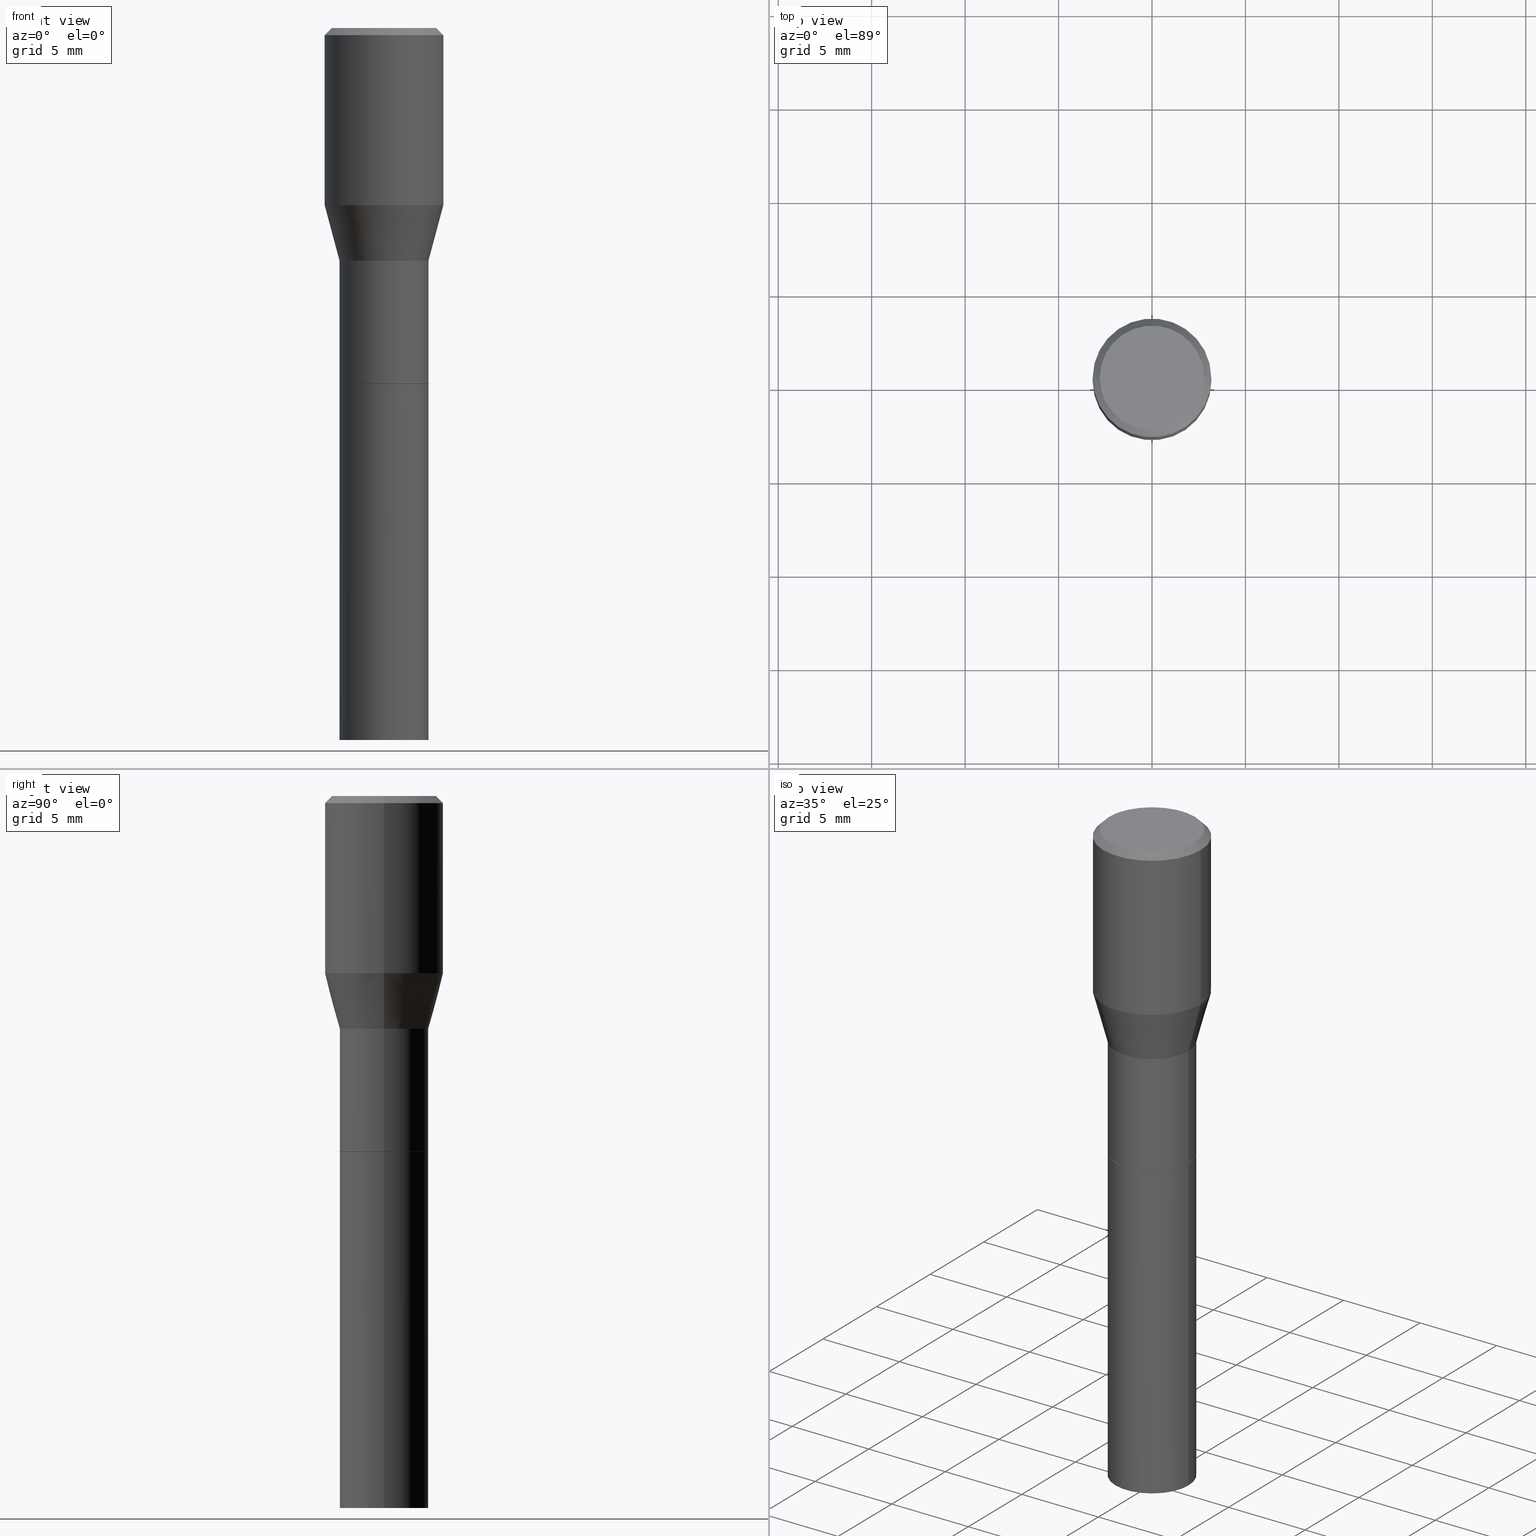
[diagram: canonical four-view strip — front | top / right | iso, engineering-drawing reading convention]
A machine part, canonical four-view strip (front | top / right | iso — engineering-drawing reading convention). The complete STEP part file that produces these views, byte-faithful:
ISO-10303-21;
HEADER;
FILE_DESCRIPTION (( 'STEP AP203' ),
    '1' );
FILE_NAME ('91009.STEP',
    '2024-03-12T20:21:16',
    ( '' ),
    ( '' ),
    'SwSTEP 2.0',
    'SolidWorks 2023',
    '' );
FILE_SCHEMA (( 'CONFIG_CONTROL_DESIGN' ));
ENDSEC;

DATA;
#1 = DIRECTION ( 'NONE',  ( -2.445468806185136597E-29, 3.491481338843145583E-15, 1.000000000000000000 ) ) ;
#2 = CIRCLE ( 'NONE', #302, 0.1250000000000000000 ) ;
#3 = ORIENTED_EDGE ( 'NONE', *, *, #110, .T. ) ;
#4 = APPROVAL ( #236, 'UNSPECIFIED' ) ;
#5 = CARTESIAN_POINT ( 'NONE',  ( 0.000000000000000000, 0.000000000000000000, 0.000000000000000000 ) ) ;
#6 = EDGE_CURVE ( 'NONE', #287, #294, #292, .T. ) ;
#7 = DIRECTION ( 'NONE',  ( 0.2588190451025213501, 1.565188264969621968E-15, 0.9659258262890682012 ) ) ;
#8 = FACE_OUTER_BOUND ( 'NONE', #249, .T. ) ;
#9 = VECTOR ( 'NONE', #384, 39.37007874015748143 ) ;
#10 = APPROVAL_PERSON_ORGANIZATION ( #204, #222, #267 ) ;
#11 = EDGE_LOOP ( 'NONE', ( #98, #28, #192, #108 ) ) ;
#12 = DIRECTION ( 'NONE',  ( -2.445468806185136597E-29, 3.491481338843145583E-15, 1.000000000000000000 ) ) ;
#13 = VERTEX_POINT ( 'NONE', #154 ) ;
#14 = DIMENSIONAL_EXPONENTS ( 1.000000000000000000, 0.000000000000000000, 0.000000000000000000, 0.000000000000000000, 0.000000000000000000, 0.000000000000000000, 0.000000000000000000 ) ;
#15 = DIRECTION ( 'NONE',  ( -2.445468806185136877E-29, 3.491481338843145188E-15, 1.000000000000000000 ) ) ;
#16 = CARTESIAN_POINT ( 'NONE',  ( 9.130730327492267337E-30, -1.303626301338105429E-15, -0.3733734122634732588 ) ) ;
#17 = ORIENTED_EDGE ( 'NONE', *, *, #380, .T. ) ;
#18 = CARTESIAN_POINT ( 'NONE',  ( -0.09324999999999999956, -1.956029903036066063E-15, -0.7500000000000002220 ) ) ;
#19 = VERTEX_POINT ( 'NONE', #126 ) ;
#20 = LOCAL_TIME ( 16, 21, 16.00000000000000000, #159 ) ;
#21 = CALENDAR_DATE ( 2024, 12, 3 ) ;
#22 = CALENDAR_DATE ( 2024, 12, 3 ) ;
#23 = AXIS2_PLACEMENT_3D ( 'NONE', #49, #432, #220 ) ;
#24 = AXIS2_PLACEMENT_3D ( 'NONE', #121, #87, #430 ) ;
#25 = MANIFOLD_SOLID_BREP ( 'Body-Move/Copy2[2]', #168 ) ;
#26 = DIRECTION ( 'NONE',  ( 1.000000000000000000, -6.982962677686266711E-15, 4.873416144172425341E-29 ) ) ;
#27 = DIRECTION ( 'NONE',  ( 1.000000000000000000, -6.982962677686266711E-15, 0.000000000000000000 ) ) ;
#28 = ORIENTED_EDGE ( 'NONE', *, *, #381, .T. ) ;
#29 = CARTESIAN_POINT ( 'NONE',  ( -0.09375000000000005551, -1.044692041258047415E-15, -0.4900000000000001577 ) ) ;
#30 = AXIS2_PLACEMENT_3D ( 'NONE', #191, #206, #459 ) ;
#31 = FACE_OUTER_BOUND ( 'NONE', #131, .T. ) ;
#32 = CARTESIAN_POINT ( 'NONE',  ( -0.1250000000000000000, 8.204981146281362596E-16, -0.01499999999999999944 ) ) ;
#33 = ORIENTED_EDGE ( 'NONE', *, *, #146, .T. ) ;
#34 = DIRECTION ( 'NONE',  ( -1.000000000000000000, 6.982962677686265922E-15, -4.876176775795935793E-29 ) ) ;
#35 = ORIENTED_EDGE ( 'NONE', *, *, #444, .F. ) ;
#36 = CARTESIAN_POINT ( 'NONE',  ( -0.1100000000000000006, 7.943120045868128186E-16, 5.464378949326430820E-17 ) ) ;
#37 = ADVANCED_FACE ( 'NONE', ( #368 ), #96, .T. ) ;
#38 = DIRECTION ( 'NONE',  ( -2.445468806185136597E-29, 3.491481338843145583E-15, 1.000000000000000000 ) ) ;
#39 = ORIENTED_EDGE ( 'NONE', *, *, #279, .F. ) ;
#40 = DIRECTION ( 'NONE',  ( 1.000000000000000000, -6.982962677686266711E-15, 0.000000000000000000 ) ) ;
#41 = ORIENTED_EDGE ( 'NONE', *, *, #436, .T. ) ;
#42 = DIRECTION ( 'NONE',  ( 1.000000000000000000, -6.982962677686269077E-15, 0.000000000000000000 ) ) ;
#43 = AXIS2_PLACEMENT_3D ( 'NONE', #358, #243, #71 ) ;
#44 = ORGANIZATION ( 'UNSPECIFIED', 'UNSPECIFIED', '' ) ;
#45 = ORIENTED_EDGE ( 'NONE', *, *, #145, .T. ) ;
#46 = DIRECTION ( 'NONE',  ( -2.445468806185136597E-29, 3.491481338843145583E-15, 1.000000000000000000 ) ) ;
#47 = DIRECTION ( 'NONE',  ( -2.445468806185136597E-29, 3.491481338843145583E-15, 1.000000000000000000 ) ) ;
#48 = ORIENTED_EDGE ( 'NONE', *, *, #362, .F. ) ;
#49 = CARTESIAN_POINT ( 'NONE',  ( 1.198279715030717314E-29, -1.710825856033141931E-15, -0.4900000000000001577 ) ) ;
#50 = CARTESIAN_POINT ( 'NONE',  ( -0.1250000000000000000, 2.101791589897489784E-16, -0.01499999999999999944 ) ) ;
#51 =( NAMED_UNIT ( * ) SI_UNIT ( $, .STERADIAN. ) SOLID_ANGLE_UNIT ( ) );
#52 = ADVANCED_FACE ( 'NONE', ( #202 ), #276, .F. ) ;
#53 = AXIS2_PLACEMENT_3D ( 'NONE', #229, #38, #370 ) ;
#54 = APPROVAL_PERSON_ORGANIZATION ( #275, #237, #166 ) ;
#55 = COORDINATED_UNIVERSAL_TIME_OFFSET ( 5, 0, .BEHIND. ) ;
#56 = DATE_AND_TIME ( #199, #286 ) ;
#57 = CC_DESIGN_PERSON_AND_ORGANIZATION_ASSIGNMENT ( #450, #232, ( #246 ) ) ;
#58 = DIRECTION ( 'NONE',  ( -2.445468806185136597E-29, 3.491481338843145583E-15, 1.000000000000000000 ) ) ;
#59 = AXIS2_PLACEMENT_3D ( 'NONE', #265, #12, #327 ) ;
#60 = APPROVAL_PERSON_ORGANIZATION ( #270, #4, #375 ) ;
#61 = EDGE_LOOP ( 'NONE', ( #435, #429, #93, #321 ) ) ;
#62 = CARTESIAN_POINT ( 'NONE',  ( 3.668203209277705088E-31, -5.237222008264718399E-17, -0.01499999999999999944 ) ) ;
#63 = LINE ( 'NONE', #29, #366 ) ;
#64 = DIRECTION ( 'NONE',  ( -2.438088387897960049E-29, 3.491481338843145188E-15, 1.000000000000000000 ) ) ;
#65 = ORIENTED_EDGE ( 'NONE', *, *, #423, .F. ) ;
#66 = ADVANCED_BREP_SHAPE_REPRESENTATION ( '91009', ( #181, #25, #81 ), #441 ) ;
#67 = DIRECTION ( 'NONE',  ( -0.7071067811865461294, 2.468850131082242072E-15, -0.7071067811865489050 ) ) ;
#68 = ORIENTED_EDGE ( 'NONE', *, *, #170, .T. ) ;
#69 = FACE_OUTER_BOUND ( 'NONE', #100, .T. ) ;
#70 = EDGE_LOOP ( 'NONE', ( #41, #180, #177, #65 ) ) ;
#71 = DIRECTION ( 'NONE',  ( -1.000000000000000000, 6.982962677686266711E-15, 0.000000000000000000 ) ) ;
#72 = AXIS2_PLACEMENT_3D ( 'NONE', #418, #463, #356 ) ;
#73 = VERTEX_POINT ( 'NONE', #434 ) ;
#74 = CC_DESIGN_PERSON_AND_ORGANIZATION_ASSIGNMENT ( #407, #201, ( #235 ) ) ;
#75 = CARTESIAN_POINT ( 'NONE',  ( 0.09375000000000001388, -5.891874759297805681E-15, -1.500000000000000222 ) ) ;
#76 = EDGE_LOOP ( 'NONE', ( #422, #240, #117, #105 ) ) ;
#77 = DIRECTION ( 'NONE',  ( -2.445468806185136597E-29, 3.491481338843145583E-15, 1.000000000000000000 ) ) ;
#78 = ORIENTED_EDGE ( 'NONE', *, *, #410, .T. ) ;
#79 = CARTESIAN_POINT ( 'NONE',  ( 0.09375000000000001388, -6.546527510330875041E-16, 4.571415727308690506E-30 ) ) ;
#80 = AXIS2_PLACEMENT_3D ( 'NONE', #238, #258, #129 ) ;
#81 = AXIS2_PLACEMENT_3D ( 'NONE', #340, #273, #200 ) ;
#82 = CARTESIAN_POINT ( 'NONE',  ( 0.1250000000000000000, -8.728703347107833388E-16, 6.095220969744919741E-30 ) ) ;
#83 = ORIENTED_EDGE ( 'NONE', *, *, #338, .T. ) ;
#84 = DIRECTION ( 'NONE',  ( -2.445468806185136597E-29, 3.491481338843145583E-15, 1.000000000000000000 ) ) ;
#85 = CC_DESIGN_DATE_AND_TIME_ASSIGNMENT ( #458, #454, ( #235 ) ) ;
#86 = CARTESIAN_POINT ( 'NONE',  ( 0.000000000000000000, 0.000000000000000000, 0.000000000000000000 ) ) ;
#87 = DIRECTION ( 'NONE',  ( -2.445468806185136597E-29, 3.491481338843145583E-15, 1.000000000000000000 ) ) ;
#88 = ADVANCED_FACE ( 'NONE', ( #271 ), #378, .T. ) ;
#89 = CC_DESIGN_APPROVAL ( #237, ( #246 ) ) ;
#90 = COORDINATED_UNIVERSAL_TIME_OFFSET ( 5, 0, .BEHIND. ) ;
#91 = PERSON_AND_ORGANIZATION_ROLE ( 'classification_officer' ) ;
#92 = EDGE_LOOP ( 'NONE', ( #135, #291 ) ) ;
#93 = ORIENTED_EDGE ( 'NONE', *, *, #97, .T. ) ;
#94 = DIRECTION ( 'NONE',  ( -2.445468806185136597E-29, 3.491481338843145583E-15, 1.000000000000000000 ) ) ;
#95 = AXIS2_PLACEMENT_3D ( 'NONE', #336, #58, #26 ) ;
#96 = CYLINDRICAL_SURFACE ( 'NONE', #216, 0.1250000000000000000 ) ;
#97 = EDGE_CURVE ( 'NONE', #294, #13, #158, .T. ) ;
#98 = ORIENTED_EDGE ( 'NONE', *, *, #457, .T. ) ;
#99 = DIRECTION ( 'NONE',  ( 1.000000000000000000, -6.982962677686266711E-15, 4.876176775795935793E-29 ) ) ;
#100 = EDGE_LOOP ( 'NONE', ( #39, #420 ) ) ;
#101 = PLANE ( 'NONE',  #112 ) ;
#102 = EDGE_CURVE ( 'NONE', #364, #73, #448, .T. ) ;
#103 = CIRCLE ( 'NONE', #53, 0.1250000000000000000 ) ;
#104 = FACE_OUTER_BOUND ( 'NONE', #439, .T. ) ;
#105 = ORIENTED_EDGE ( 'NONE', *, *, #102, .F. ) ;
#106 = CALENDAR_DATE ( 2024, 12, 3 ) ;
#107 = FACE_OUTER_BOUND ( 'NONE', #92, .T. ) ;
#108 = ORIENTED_EDGE ( 'NONE', *, *, #182, .F. ) ;
#109 = PLANE ( 'NONE',  #245 ) ;
#110 = EDGE_CURVE ( 'NONE', #143, #13, #371, .T. ) ;
#111 = LINE ( 'NONE', #79, #247 ) ;
#112 = AXIS2_PLACEMENT_3D ( 'NONE', #244, #64, #211 ) ;
#113 = CARTESIAN_POINT ( 'NONE',  ( -0.09375000000000005551, -7.300699614480138057E-16, -0.4900000000000001577 ) ) ;
#114 = ORIENTED_EDGE ( 'NONE', *, *, #224, .T. ) ;
#115 = CARTESIAN_POINT ( 'NONE',  ( 0.09375000000000012490, -6.546527510330883916E-16, 4.571415727308696112E-30 ) ) ;
#116 = DIRECTION ( 'NONE',  ( -2.445468806185136597E-29, 3.491481338843145583E-15, 1.000000000000000000 ) ) ;
#117 = ORIENTED_EDGE ( 'NONE', *, *, #444, .T. ) ;
#118 = DIRECTION ( 'NONE',  ( 1.000000000000000000, -6.982962677686269077E-15, 0.000000000000000000 ) ) ;
#119 = CIRCLE ( 'NONE', #440, 0.1250000000000000000 ) ;
#120 = VERTEX_POINT ( 'NONE', #443 ) ;
#121 = CARTESIAN_POINT ( 'NONE',  ( 1.834101604638853008E-29, -2.618611004132359877E-15, -0.7500000000000002220 ) ) ;
#122 = APPLICATION_PROTOCOL_DEFINITION ( 'international standard', 'config_control_design', 1994, #342 ) ;
#123 = MECHANICAL_CONTEXT ( 'NONE', #308, 'mechanical' ) ;
#124 = SECURITY_CLASSIFICATION ( '', '', #234 ) ;
#125 = DATE_TIME_ROLE ( 'classification_date' ) ;
#126 = CARTESIAN_POINT ( 'NONE',  ( -0.09375000000000001388, -3.261782691423444906E-15, -1.500000000000000222 ) ) ;
#127 = CARTESIAN_POINT ( 'NONE',  ( 0.000000000000000000, 0.000000000000000000, 0.000000000000000000 ) ) ;
#128 = DATE_AND_TIME ( #373, #20 ) ;
#129 = DIRECTION ( 'NONE',  ( 1.000000000000000000, -6.982962677686266711E-15, 0.000000000000000000 ) ) ;
#130 = AXIS2_PLACEMENT_3D ( 'NONE', #316, #175, #464 ) ;
#131 = EDGE_LOOP ( 'NONE', ( #264, #403, #17, #315 ) ) ;
#132 = VECTOR ( 'NONE', #7, 39.37007874015747433 ) ;
#133 = EDGE_CURVE ( 'NONE', #287, #137, #379, .T. ) ;
#134 = DIRECTION ( 'NONE',  ( -2.445468806185136597E-29, 3.491481338843145583E-15, 1.000000000000000000 ) ) ;
#135 = ORIENTED_EDGE ( 'NONE', *, *, #313, .T. ) ;
#136 = DIRECTION ( 'NONE',  ( -2.445468806185136597E-29, 3.491481338843145583E-15, 1.000000000000000000 ) ) ;
#137 = VERTEX_POINT ( 'NONE', #50 ) ;
#138 = CARTESIAN_POINT ( 'NONE',  ( 0.000000000000000000, 0.000000000000000000, 0.000000000000000000 ) ) ;
#139 = EDGE_LOOP ( 'NONE', ( #417, #419, #299, #35 ) ) ;
#140 = VECTOR ( 'NONE', #376, 39.37007874015748143 ) ;
#141 = LOCAL_TIME ( 16, 21, 16.00000000000000000, #161 ) ;
#142 = DIRECTION ( 'NONE',  ( -2.438088387897960049E-29, 3.491481338843145188E-15, 1.000000000000000000 ) ) ;
#143 = VERTEX_POINT ( 'NONE', #438 ) ;
#144 = DIRECTION ( 'NONE',  ( 1.000000000000000000, -6.982962677686266711E-15, 4.876176775795935793E-29 ) ) ;
#145 = EDGE_CURVE ( 'NONE', #137, #13, #2, .T. ) ;
#146 = EDGE_CURVE ( 'NONE', #205, #143, #352, .T. ) ;
#147 = CARTESIAN_POINT ( 'NONE',  ( 0.09375000000000005551, -2.365478607066230027E-15, -0.4900000000000001577 ) ) ;
#148 = DIRECTION ( 'NONE',  ( -2.445468806185136597E-29, 3.491481338843145583E-15, 1.000000000000000000 ) ) ;
#149 = AXIS2_PLACEMENT_3D ( 'NONE', #138, #382, #218 ) ;
#150 = CARTESIAN_POINT ( 'NONE',  ( 9.130730327492267337E-30, -1.303626301338105429E-15, -0.3733734122634732588 ) ) ;
#151 = ORIENTED_EDGE ( 'NONE', *, *, #436, .F. ) ;
#152 = PERSON ( 'UNSPECIFIED', 'UNSPECIFIED', 'UNSPECIFIED', ('UNSPECIFIED'), ('UNSPECIFIED'), ('UNSPECIFIED') ) ;
#153 = DIRECTION ( 'NONE',  ( -0.7071067811865595631, 7.493145998870398336E-15, 0.7071067811865354713 ) ) ;
#154 = CARTESIAN_POINT ( 'NONE',  ( 0.1250000000000000000, -9.252425547934304180E-16, -0.01499999999999999944 ) ) ;
#155 = ADVANCED_FACE ( 'NONE', ( #165 ), #314, .T. ) ;
#156 = FACE_OUTER_BOUND ( 'NONE', #70, .T. ) ;
#157 = VECTOR ( 'NONE', #67, 39.37007874015748143 ) ;
#158 = LINE ( 'NONE', #82, #285 ) ;
#159 = COORDINATED_UNIVERSAL_TIME_OFFSET ( 5, 0, .BEHIND. ) ;
#160 = APPROVAL_DATE_TIME ( #266, #222 ) ;
#161 = COORDINATED_UNIVERSAL_TIME_OFFSET ( 5, 0, .BEHIND. ) ;
#162 = AXIS2_PLACEMENT_3D ( 'NONE', #280, #136, #326 ) ;
#163 = CIRCLE ( 'NONE', #325, 0.09324999999999999956 ) ;
#164 = ADVANCED_FACE ( 'NONE', ( #290 ), #179, .T. ) ;
#165 = FACE_OUTER_BOUND ( 'NONE', #139, .T. ) ;
#166 = APPROVAL_ROLE ( '' ) ;
#167 = DIRECTION ( 'NONE',  ( 1.000000000000000000, -6.982962677686266711E-15, 4.876176775795935793E-29 ) ) ;
#168 = CLOSED_SHELL ( 'NONE', ( #227, #197, #198, #37, #337, #408, #88, #392, #52, #207, #187, #219 ) ) ;
#169 = ORIENTED_EDGE ( 'NONE', *, *, #133, .T. ) ;
#170 = EDGE_CURVE ( 'NONE', #143, #205, #401, .T. ) ;
#171 = FACE_OUTER_BOUND ( 'NONE', #400, .T. ) ;
#172 = PRODUCT ( '91009', '91009', '', ( #123 ) ) ;
#173 = CONICAL_SURFACE ( 'NONE', #23, 0.09375000000000005551, 0.2617993877991500740 ) ;
#174 = LOCAL_TIME ( 16, 21, 16.00000000000000000, #322 ) ;
#175 = DIRECTION ( 'NONE',  ( -2.445468806185136597E-29, 3.491481338843145583E-15, 1.000000000000000000 ) ) ;
#176 = CARTESIAN_POINT ( 'NONE',  ( 0.09324999999999999956, -3.269772273826604374E-15, -0.7500000000000002220 ) ) ;
#177 = ORIENTED_EDGE ( 'NONE', *, *, #361, .F. ) ;
#178 = APPROVAL_DATE_TIME ( #355, #4 ) ;
#179 = CYLINDRICAL_SURFACE ( 'NONE', #149, 0.09375000000000001388 ) ;
#180 = ORIENTED_EDGE ( 'NONE', *, *, #195, .T. ) ;
#181 = MANIFOLD_SOLID_BREP ( 'Body-Move/Copy2[1]', #389 ) ;
#182 = EDGE_CURVE ( 'NONE', #262, #120, #208, .T. ) ;
#183 = CARTESIAN_POINT ( 'NONE',  ( 0.09324999999999999956, -3.269772273826604374E-15, -0.7500000000000002220 ) ) ;
#184 = CARTESIAN_POINT ( 'NONE',  ( -0.09375000000000001388, -3.261782691423444906E-15, -0.7500000000000001110 ) ) ;
#185 = LINE ( 'NONE', #18, #210 ) ;
#186 = CC_DESIGN_PERSON_AND_ORGANIZATION_ASSIGNMENT ( #412, #409, ( #172 ) ) ;
#187 = ADVANCED_FACE ( 'NONE', ( #171 ), #233, .T. ) ;
#188 = CIRCLE ( 'NONE', #59, 0.09375000000000019429 ) ;
#189 = CARTESIAN_POINT ( 'NONE',  ( 0.09375000000000005551, -2.365478607066230027E-15, -0.4900000000000001577 ) ) ;
#190 = DIRECTION ( 'NONE',  ( 1.000000000000000000, -6.982962677686268288E-15, 0.000000000000000000 ) ) ;
#191 = CARTESIAN_POINT ( 'NONE',  ( 7.681258945454893776E-16, 0.1100000000000000006, -3.567410525261111604E-16 ) ) ;
#192 = ORIENTED_EDGE ( 'NONE', *, *, #410, .F. ) ;
#193 = LINE ( 'NONE', #254, #317 ) ;
#194 = DIRECTION ( 'NONE',  ( 1.000000000000000000, -6.982962677686266711E-15, 0.000000000000000000 ) ) ;
#195 = EDGE_CURVE ( 'NONE', #357, #287, #63, .T. ) ;
#196 = CIRCLE ( 'NONE', #341, 0.09375000000000019429 ) ;
#197 = ADVANCED_FACE ( 'NONE', ( #319 ), #415, .T. ) ;
#198 = ADVANCED_FACE ( 'NONE', ( #213 ), #324, .T. ) ;
#199 = CALENDAR_DATE ( 2024, 12, 3 ) ;
#200 = DIRECTION ( 'NONE',  ( 1.000000000000000000, 0.000000000000000000, 0.000000000000000000 ) ) ;
#201 = PERSON_AND_ORGANIZATION_ROLE ( 'creator' ) ;
#202 = FACE_OUTER_BOUND ( 'NONE', #385, .T. ) ;
#203 = AXIS2_PLACEMENT_3D ( 'NONE', #261, #360, #40 ) ;
#204 = PERSON_AND_ORGANIZATION ( #152, #44 ) ;
#205 = VERTEX_POINT ( 'NONE', #36 ) ;
#206 = DIRECTION ( 'NONE',  ( 2.438088387897960049E-29, -3.491481338843145188E-15, -1.000000000000000000 ) ) ;
#207 = ADVANCED_FACE ( 'NONE', ( #461 ), #351, .F. ) ;
#208 = LINE ( 'NONE', #176, #9 ) ;
#209 = PRODUCT_DEFINITION_SHAPE ( 'NONE', 'NONE',  #235 ) ;
#210 = VECTOR ( 'NONE', #153, 39.37007874015748143 ) ;
#211 = DIRECTION ( 'NONE',  ( 1.000000000000000000, -6.982962677686265922E-15, 4.876176775795935793E-29 ) ) ;
#212 = EDGE_LOOP ( 'NONE', ( #354, #305, #214, #45 ) ) ;
#213 = FACE_OUTER_BOUND ( 'NONE', #298, .T. ) ;
#214 = ORIENTED_EDGE ( 'NONE', *, *, #272, .T. ) ;
#215 = DIRECTION ( 'NONE',  ( 1.000000000000000000, -6.982962677686265922E-15, 4.876176775795935793E-29 ) ) ;
#216 = AXIS2_PLACEMENT_3D ( 'NONE', #411, #47, #167 ) ;
#217 = AXIS2_PLACEMENT_3D ( 'NONE', #257, #399, #293 ) ;
#218 = DIRECTION ( 'NONE',  ( 1.000000000000000000, -6.982962677686265922E-15, 4.876176775795935793E-29 ) ) ;
#219 = ADVANCED_FACE ( 'NONE', ( #31 ), #424, .T. ) ;
#220 = DIRECTION ( 'NONE',  ( 1.000000000000000000, -6.982962677686269077E-15, 0.000000000000000000 ) ) ;
#221 = ORIENTED_EDGE ( 'NONE', *, *, #423, .T. ) ;
#222 = APPROVAL ( #239, 'UNSPECIFIED' ) ;
#223 = CARTESIAN_POINT ( 'NONE',  ( -0.09375000000000019429, -1.950731448687842083E-15, -0.7495000000000000551 ) ) ;
#224 = EDGE_CURVE ( 'NONE', #357, #426, #268, .T. ) ;
#225 = CARTESIAN_POINT ( 'NONE',  ( 3.668203209277704895E-29, -5.237222008264718177E-15, -1.500000000000000222 ) ) ;
#226 = DIRECTION ( 'NONE',  ( -2.445468806185136597E-29, 3.491481338843145583E-15, 1.000000000000000000 ) ) ;
#227 = ADVANCED_FACE ( 'NONE', ( #104 ), #282, .T. ) ;
#228 = ORIENTED_EDGE ( 'NONE', *, *, #362, .T. ) ;
#229 = CARTESIAN_POINT ( 'NONE',  ( 3.668203209277705088E-31, -5.237222008264718399E-17, -0.01499999999999999944 ) ) ;
#230 = DIRECTION ( 'NONE',  ( 1.000000000000000000, -6.982962677686266711E-15, 4.876176775795935793E-29 ) ) ;
#231 =( CONVERSION_BASED_UNIT ( 'INCH', #309 ) LENGTH_UNIT ( ) NAMED_UNIT ( #14 ) );
#232 = PERSON_AND_ORGANIZATION_ROLE ( 'creator' ) ;
#233 = CONICAL_SURFACE ( 'NONE', #130, 0.09324999999999999956, 0.7853981633974653764 ) ;
#234 = SECURITY_CLASSIFICATION_LEVEL ( 'unclassified' ) ;
#235 = PRODUCT_DEFINITION ( 'UNKNOWN', '', #246, #447 ) ;
#236 = APPROVAL_STATUS ( 'not_yet_approved' ) ;
#237 = APPROVAL ( #348, 'UNSPECIFIED' ) ;
#238 = CARTESIAN_POINT ( 'NONE',  ( 1.834101604638852448E-29, -2.618611004132359088E-15, -0.7500000000000001110 ) ) ;
#239 = APPROVAL_STATUS ( 'not_yet_approved' ) ;
#240 = ORIENTED_EDGE ( 'NONE', *, *, #414, .T. ) ;
#241 = VECTOR ( 'NONE', #333, 39.37007874015748143 ) ;
#242 = CARTESIAN_POINT ( 'NONE',  ( 0.1250000000000000000, -9.099344698040885245E-16, -0.01499999999999999944 ) ) ;
#243 = DIRECTION ( 'NONE',  ( 2.445468806185136597E-29, -3.491481338843145583E-15, -1.000000000000000000 ) ) ;
#244 = CARTESIAN_POINT ( 'NONE',  ( 3.576687321579069994E-29, -5.368277968210015545E-15, -1.500000000000000222 ) ) ;
#245 = AXIS2_PLACEMENT_3D ( 'NONE', #421, #386, #34 ) ;
#246 = PRODUCT_DEFINITION_FORMATION_WITH_SPECIFIED_SOURCE ( 'ANY', '', #172, .NOT_KNOWN. ) ;
#247 = VECTOR ( 'NONE', #367, 39.37007874015748143 ) ;
#248 = CARTESIAN_POINT ( 'NONE',  ( 1.834101604638853008E-29, -2.618611004132359877E-15, -0.7500000000000002220 ) ) ;
#249 = EDGE_LOOP ( 'NONE', ( #256, #114, #221, #345 ) ) ;
#250 = CARTESIAN_POINT ( 'NONE',  ( 3.668203209277704895E-29, -5.237222008264718177E-15, -1.500000000000000222 ) ) ;
#251 = CARTESIAN_POINT ( 'NONE',  ( -0.09324999999999999956, -1.953380675861954073E-15, -0.7500000000000002220 ) ) ;
#252 = ADVANCED_FACE ( 'NONE', ( #107 ), #109, .F. ) ;
#253 = LOCAL_TIME ( 16, 21, 16.00000000000000000, #90 ) ;
#254 = CARTESIAN_POINT ( 'NONE',  ( -0.09375000000000012490, 6.661338147750948117E-16, -4.611501647113980301E-30 ) ) ;
#255 = CARTESIAN_POINT ( 'NONE',  ( 3.668203209277705088E-31, -5.237222008264718399E-17, -0.01499999999999999944 ) ) ;
#256 = ORIENTED_EDGE ( 'NONE', *, *, #195, .F. ) ;
#257 = CARTESIAN_POINT ( 'NONE',  ( 1.198279715030717314E-29, -1.710825856033141931E-15, -0.4900000000000001577 ) ) ;
#258 = DIRECTION ( 'NONE',  ( -2.445468806185136597E-29, 3.491481338843145583E-15, 1.000000000000000000 ) ) ;
#259 = ORIENTED_EDGE ( 'NONE', *, *, #466, .T. ) ;
#260 = CIRCLE ( 'NONE', #203, 0.09375000000000001388 ) ;
#261 = CARTESIAN_POINT ( 'NONE',  ( 1.834101604638852448E-29, -2.618611004132359088E-15, -0.7500000000000001110 ) ) ;
#262 = VERTEX_POINT ( 'NONE', #183 ) ;
#263 = ADVANCED_FACE ( 'NONE', ( #69 ), #101, .F. ) ;
#264 = ORIENTED_EDGE ( 'NONE', *, *, #338, .F. ) ;
#265 = CARTESIAN_POINT ( 'NONE',  ( 1.832878870235759926E-29, -2.616865263462937979E-15, -0.7495000000000000551 ) ) ;
#266 = DATE_AND_TIME ( #21, #141 ) ;
#267 = APPROVAL_ROLE ( '' ) ;
#268 = CIRCLE ( 'NONE', #72, 0.09375000000000005551 ) ;
#269 = CC_DESIGN_PERSON_AND_ORGANIZATION_ASSIGNMENT ( #374, #91, ( #124 ) ) ;
#270 = PERSON_AND_ORGANIZATION ( #152, #44 ) ;
#271 = FACE_OUTER_BOUND ( 'NONE', #61, .T. ) ;
#272 = EDGE_CURVE ( 'NONE', #205, #137, #353, .T. ) ;
#273 = DIRECTION ( 'NONE',  ( 0.000000000000000000, 0.000000000000000000, 1.000000000000000000 ) ) ;
#274 = ORIENTED_EDGE ( 'NONE', *, *, #182, .T. ) ;
#275 = PERSON_AND_ORGANIZATION ( #152, #44 ) ;
#276 = PLANE ( 'NONE',  #30 ) ;
#277 = CONICAL_SURFACE ( 'NONE', #339, 0.1250000000000000000, 0.7853981633974463916 ) ;
#278 = ORIENTED_EDGE ( 'NONE', *, *, #97, .F. ) ;
#279 = EDGE_CURVE ( 'NONE', #383, #19, #425, .T. ) ;
#280 = CARTESIAN_POINT ( 'NONE',  ( -1.336296826575383585E-45, 1.907877712994245642E-31, 5.464378949326977476E-17 ) ) ;
#281 = VERTEX_POINT ( 'NONE', #251 ) ;
#282 = CYLINDRICAL_SURFACE ( 'NONE', #330, 0.09375000000000012490 ) ;
#283 = ORIENTED_EDGE ( 'NONE', *, *, #272, .F. ) ;
#284 = CARTESIAN_POINT ( 'NONE',  ( 1.834101604638853008E-29, -2.618611004132359877E-15, -0.7500000000000002220 ) ) ;
#285 = VECTOR ( 'NONE', #349, 39.37007874015748143 ) ;
#286 = LOCAL_TIME ( 16, 21, 16.00000000000000000, #55 ) ;
#287 = VERTEX_POINT ( 'NONE', #433 ) ;
#288 = SHAPE_DEFINITION_REPRESENTATION ( #209, #66 ) ;
#289 = DIRECTION ( 'NONE',  ( -2.445468806185136597E-29, 3.491481338843145583E-15, 1.000000000000000000 ) ) ;
#290 = FACE_OUTER_BOUND ( 'NONE', #76, .T. ) ;
#291 = ORIENTED_EDGE ( 'NONE', *, *, #102, .T. ) ;
#292 = CIRCLE ( 'NONE', #465, 0.1250000000000000000 ) ;
#293 = DIRECTION ( 'NONE',  ( 1.000000000000000000, -6.982962677686269077E-15, 0.000000000000000000 ) ) ;
#294 = VERTEX_POINT ( 'NONE', #331 ) ;
#295 = AXIS2_PLACEMENT_3D ( 'NONE', #86, #116, #230 ) ;
#296 = CARTESIAN_POINT ( 'NONE',  ( -0.09375000000000001388, 6.661338147750940229E-16, -4.611501647113973995E-30 ) ) ;
#297 = DIRECTION ( 'NONE',  ( 1.000000000000000000, -6.982962677686266711E-15, 0.000000000000000000 ) ) ;
#298 = EDGE_LOOP ( 'NONE', ( #332, #3, #228, #283 ) ) ;
#299 = ORIENTED_EDGE ( 'NONE', *, *, #313, .F. ) ;
#300 = DIRECTION ( 'NONE',  ( -1.000000000000000000, 6.982962677686266711E-15, 0.000000000000000000 ) ) ;
#301 = ORIENTED_EDGE ( 'NONE', *, *, #380, .F. ) ;
#302 = AXIS2_PLACEMENT_3D ( 'NONE', #62, #226, #194 ) ;
#303 = DIRECTION ( 'NONE',  ( -2.445468806185136877E-29, 3.491481338843145188E-15, 1.000000000000000000 ) ) ;
#304 = CC_DESIGN_APPROVAL ( #222, ( #235 ) ) ;
#305 = ORIENTED_EDGE ( 'NONE', *, *, #146, .F. ) ;
#306 = PERSON_AND_ORGANIZATION ( #152, #44 ) ;
#307 = EDGE_CURVE ( 'NONE', #19, #364, #402, .T. ) ;
#308 = APPLICATION_CONTEXT ( 'configuration controlled 3d designs of mechanical parts and assemblies' ) ;
#309 = LENGTH_MEASURE_WITH_UNIT ( LENGTH_MEASURE( 0.02539999999999999897 ), #372 );
#310 = APPROVAL_DATE_TIME ( #128, #237 ) ;
#311 = VECTOR ( 'NONE', #15, 39.37007874015748143 ) ;
#312 = CIRCLE ( 'NONE', #217, 0.09375000000000005551 ) ;
#313 = EDGE_CURVE ( 'NONE', #73, #364, #260, .T. ) ;
#314 = CYLINDRICAL_SURFACE ( 'NONE', #344, 0.09375000000000001388 ) ;
#315 = ORIENTED_EDGE ( 'NONE', *, *, #224, .F. ) ;
#316 = CARTESIAN_POINT ( 'NONE',  ( 1.834101604638853008E-29, -2.618611004132359877E-15, -0.7500000000000002220 ) ) ;
#317 = VECTOR ( 'NONE', #303, 39.37007874015748143 ) ;
#318 = CIRCLE ( 'NONE', #394, 0.09375000000000001388 ) ;
#319 = FACE_OUTER_BOUND ( 'NONE', #11, .T. ) ;
#320 = DIRECTION ( 'NONE',  ( 1.000000000000000000, -6.982962677686268288E-15, 0.000000000000000000 ) ) ;
#321 = ORIENTED_EDGE ( 'NONE', *, *, #145, .F. ) ;
#322 = COORDINATED_UNIVERSAL_TIME_OFFSET ( 5, 0, .BEHIND. ) ;
#323 = DIRECTION ( 'NONE',  ( 1.000000000000000000, -6.982962677686265922E-15, 4.876176775795935793E-29 ) ) ;
#324 = CONICAL_SURFACE ( 'NONE', #43, 0.1250000000000000000, 0.7853981633974463916 ) ;
#325 = AXIS2_PLACEMENT_3D ( 'NONE', #363, #46, #190 ) ;
#326 = DIRECTION ( 'NONE',  ( 1.000000000000000000, -6.982962677686266711E-15, 4.873416144172425341E-29 ) ) ;
#327 = DIRECTION ( 'NONE',  ( 1.000000000000000000, -6.982962677686269077E-15, 0.000000000000000000 ) ) ;
#328 = DIRECTION ( 'NONE',  ( 2.445468806185136597E-29, -3.491481338843145583E-15, -1.000000000000000000 ) ) ;
#329 = EDGE_LOOP ( 'NONE', ( #398, #416 ) ) ;
#330 = AXIS2_PLACEMENT_3D ( 'NONE', #427, #1, #99 ) ;
#331 = CARTESIAN_POINT ( 'NONE',  ( 0.1250000000000000000, -2.176496636048888767E-15, -0.3733734122634732588 ) ) ;
#332 = ORIENTED_EDGE ( 'NONE', *, *, #170, .F. ) ;
#333 = DIRECTION ( 'NONE',  ( -2.445468806185136877E-29, 3.491481338843145188E-15, 1.000000000000000000 ) ) ;
#334 = DIRECTION ( 'NONE',  ( 0.7071067811865461294, -7.319954787623251312E-15, -0.7071067811865489050 ) ) ;
#335 = LINE ( 'NONE', #115, #241 ) ;
#336 = CARTESIAN_POINT ( 'NONE',  ( -1.336296826575383585E-45, 1.907877712994245642E-31, 5.464378949326977476E-17 ) ) ;
#337 = ADVANCED_FACE ( 'NONE', ( #156 ), #173, .T. ) ;
#338 = EDGE_CURVE ( 'NONE', #413, #357, #193, .T. ) ;
#339 = AXIS2_PLACEMENT_3D ( 'NONE', #255, #328, #300 ) ;
#340 = CARTESIAN_POINT ( 'NONE',  ( 0.000000000000000000, 0.000000000000000000, 0.000000000000000000 ) ) ;
#341 = AXIS2_PLACEMENT_3D ( 'NONE', #397, #77, #118 ) ;
#342 = APPLICATION_CONTEXT ( 'configuration controlled 3d designs of mechanical parts and assemblies' ) ;
#343 =( NAMED_UNIT ( * ) PLANE_ANGLE_UNIT ( ) SI_UNIT ( $, .RADIAN. ) );
#344 = AXIS2_PLACEMENT_3D ( 'NONE', #127, #94, #215 ) ;
#345 = ORIENTED_EDGE ( 'NONE', *, *, #6, .F. ) ;
#346 = CC_DESIGN_APPROVAL ( #4, ( #124 ) ) ;
#347 = EDGE_CURVE ( 'NONE', #413, #120, #188, .T. ) ;
#348 = APPROVAL_STATUS ( 'not_yet_approved' ) ;
#349 = DIRECTION ( 'NONE',  ( -2.445468806185136877E-29, 3.491481338843145188E-15, 1.000000000000000000 ) ) ;
#350 = DIRECTION ( 'NONE',  ( -2.445468806185136597E-29, 3.491481338843145583E-15, 1.000000000000000000 ) ) ;
#351 = PLANE ( 'NONE',  #406 ) ;
#352 = CIRCLE ( 'NONE', #95, 0.1100000000000000006 ) ;
#353 = LINE ( 'NONE', #32, #157 ) ;
#354 = ORIENTED_EDGE ( 'NONE', *, *, #110, .F. ) ;
#355 = DATE_AND_TIME ( #106, #174 ) ;
#356 = DIRECTION ( 'NONE',  ( 1.000000000000000000, -6.982962677686269077E-15, 0.000000000000000000 ) ) ;
#357 = VERTEX_POINT ( 'NONE', #113 ) ;
#358 = CARTESIAN_POINT ( 'NONE',  ( 3.668203209277705088E-31, -5.237222008264718399E-17, -0.01499999999999999944 ) ) ;
#359 = AXIS2_PLACEMENT_3D ( 'NONE', #250, #388, #428 ) ;
#360 = DIRECTION ( 'NONE',  ( -2.445468806185136597E-29, 3.491481338843145583E-15, 1.000000000000000000 ) ) ;
#361 = EDGE_CURVE ( 'NONE', #294, #287, #119, .T. ) ;
#362 = EDGE_CURVE ( 'NONE', #13, #137, #103, .T. ) ;
#363 = CARTESIAN_POINT ( 'NONE',  ( 1.834101604638853008E-29, -2.618611004132359877E-15, -0.7500000000000002220 ) ) ;
#364 = VERTEX_POINT ( 'NONE', #184 ) ;
#365 = DIRECTION ( 'NONE',  ( -2.445468806185136597E-29, 3.491481338843145583E-15, 1.000000000000000000 ) ) ;
#366 = VECTOR ( 'NONE', #390, 39.37007874015747433 ) ;
#367 = DIRECTION ( 'NONE',  ( -2.445468806185136877E-29, 3.491481338843145188E-15, 1.000000000000000000 ) ) ;
#368 = FACE_OUTER_BOUND ( 'NONE', #396, .T. ) ;
#369 = ORIENTED_EDGE ( 'NONE', *, *, #347, .F. ) ;
#370 = DIRECTION ( 'NONE',  ( 1.000000000000000000, -6.982962677686266711E-15, 0.000000000000000000 ) ) ;
#371 = LINE ( 'NONE', #242, #393 ) ;
#372 =( LENGTH_UNIT ( ) NAMED_UNIT ( * ) SI_UNIT ( $, .METRE. ) );
#373 = CALENDAR_DATE ( 2024, 12, 3 ) ;
#374 = PERSON_AND_ORGANIZATION ( #152, #44 ) ;
#375 = APPROVAL_ROLE ( '' ) ;
#376 = DIRECTION ( 'NONE',  ( -2.445468806185136877E-29, 3.491481338843145188E-15, 1.000000000000000000 ) ) ;
#377 = AXIS2_PLACEMENT_3D ( 'NONE', #248, #289, #320 ) ;
#378 = CYLINDRICAL_SURFACE ( 'NONE', #295, 0.1250000000000000000 ) ;
#379 = LINE ( 'NONE', #455, #140 ) ;
#380 = EDGE_CURVE ( 'NONE', #120, #426, #335, .T. ) ;
#381 = EDGE_CURVE ( 'NONE', #281, #413, #185, .T. ) ;
#382 = DIRECTION ( 'NONE',  ( -2.445468806185136597E-29, 3.491481338843145583E-15, 1.000000000000000000 ) ) ;
#383 = VERTEX_POINT ( 'NONE', #75 ) ;
#384 = DIRECTION ( 'NONE',  ( 0.7071067811865595631, -2.468850131082382884E-15, 0.7071067811865354713 ) ) ;
#385 = EDGE_LOOP ( 'NONE', ( #33, #68 ) ) ;
#386 = DIRECTION ( 'NONE',  ( 2.438088387897960049E-29, -3.491481338843145188E-15, -1.000000000000000000 ) ) ;
#387 = ORIENTED_EDGE ( 'NONE', *, *, #361, .T. ) ;
#388 = DIRECTION ( 'NONE',  ( -2.445468806185136597E-29, 3.491481338843145583E-15, 1.000000000000000000 ) ) ;
#389 = CLOSED_SHELL ( 'NONE', ( #155, #263, #164, #252 ) ) ;
#390 = DIRECTION ( 'NONE',  ( -0.2588190451025213501, 5.211531920934551042E-15, 0.9659258262890682012 ) ) ;
#391 = CC_DESIGN_DATE_AND_TIME_ASSIGNMENT ( #56, #125, ( #124 ) ) ;
#392 = ADVANCED_FACE ( 'NONE', ( #442 ), #277, .T. ) ;
#393 = VECTOR ( 'NONE', #334, 39.37007874015748143 ) ;
#394 = AXIS2_PLACEMENT_3D ( 'NONE', #225, #365, #437 ) ;
#395 = LINE ( 'NONE', #189, #132 ) ;
#396 = EDGE_LOOP ( 'NONE', ( #387, #169, #48, #278 ) ) ;
#397 = CARTESIAN_POINT ( 'NONE',  ( 1.832878870235759926E-29, -2.616865263462937979E-15, -0.7495000000000000551 ) ) ;
#398 = ORIENTED_EDGE ( 'NONE', *, *, #457, .F. ) ;
#399 = DIRECTION ( 'NONE',  ( -2.445468806185136597E-29, 3.491481338843145583E-15, 1.000000000000000000 ) ) ;
#400 = EDGE_LOOP ( 'NONE', ( #452, #259, #274, #369 ) ) ;
#401 = CIRCLE ( 'NONE', #162, 0.1100000000000000006 ) ;
#402 = LINE ( 'NONE', #296, #311 ) ;
#403 = ORIENTED_EDGE ( 'NONE', *, *, #347, .T. ) ;
#404 = CARTESIAN_POINT ( 'NONE',  ( 1.198279715030717314E-29, -1.710825856033141931E-15, -0.4900000000000001577 ) ) ;
#405 = PRODUCT_RELATED_PRODUCT_CATEGORY ( 'detail', '', ( #172 ) ) ;
#406 = AXIS2_PLACEMENT_3D ( 'NONE', #284, #142, #323 ) ;
#407 = PERSON_AND_ORGANIZATION ( #152, #44 ) ;
#408 = ADVANCED_FACE ( 'NONE', ( #8 ), #460, .T. ) ;
#409 = PERSON_AND_ORGANIZATION_ROLE ( 'design_owner' ) ;
#410 = EDGE_CURVE ( 'NONE', #120, #413, #196, .T. ) ;
#411 = CARTESIAN_POINT ( 'NONE',  ( 0.000000000000000000, 0.000000000000000000, 0.000000000000000000 ) ) ;
#412 = PERSON_AND_ORGANIZATION ( #152, #44 ) ;
#413 = VERTEX_POINT ( 'NONE', #223 ) ;
#414 = EDGE_CURVE ( 'NONE', #19, #383, #318, .T. ) ;
#415 = CONICAL_SURFACE ( 'NONE', #377, 0.09324999999999999956, 0.7853981633974653764 ) ;
#416 = ORIENTED_EDGE ( 'NONE', *, *, #466, .F. ) ;
#417 = ORIENTED_EDGE ( 'NONE', *, *, #279, .T. ) ;
#418 = CARTESIAN_POINT ( 'NONE',  ( 1.198279715030717314E-29, -1.710825856033141931E-15, -0.4900000000000001577 ) ) ;
#419 = ORIENTED_EDGE ( 'NONE', *, *, #307, .T. ) ;
#420 = ORIENTED_EDGE ( 'NONE', *, *, #414, .F. ) ;
#421 = CARTESIAN_POINT ( 'NONE',  ( 6.546527510331058451E-16, 0.09374999999999739098, -0.7500000000000003331 ) ) ;
#422 = ORIENTED_EDGE ( 'NONE', *, *, #307, .F. ) ;
#423 = EDGE_CURVE ( 'NONE', #426, #294, #395, .T. ) ;
#424 = CYLINDRICAL_SURFACE ( 'NONE', #449, 0.09375000000000012490 ) ;
#425 = CIRCLE ( 'NONE', #359, 0.09375000000000001388 ) ;
#426 = VERTEX_POINT ( 'NONE', #147 ) ;
#427 = CARTESIAN_POINT ( 'NONE',  ( 0.000000000000000000, 0.000000000000000000, 0.000000000000000000 ) ) ;
#428 = DIRECTION ( 'NONE',  ( 1.000000000000000000, -6.982962677686261189E-15, 0.000000000000000000 ) ) ;
#429 = ORIENTED_EDGE ( 'NONE', *, *, #6, .T. ) ;
#430 = DIRECTION ( 'NONE',  ( 1.000000000000000000, -6.982962677686268288E-15, 0.000000000000000000 ) ) ;
#431 = AXIS2_PLACEMENT_3D ( 'NONE', #404, #148, #42 ) ;
#432 = DIRECTION ( 'NONE',  ( -2.445468806185136597E-29, 3.491481338843145583E-15, 1.000000000000000000 ) ) ;
#433 = CARTESIAN_POINT ( 'NONE',  ( -0.1250000000000000000, -4.154478816379799005E-16, -0.3733734122634732588 ) ) ;
#434 = CARTESIAN_POINT ( 'NONE',  ( 0.09375000000000001388, -3.273263755165446987E-15, -0.7500000000000001110 ) ) ;
#435 = ORIENTED_EDGE ( 'NONE', *, *, #133, .F. ) ;
#436 = EDGE_CURVE ( 'NONE', #426, #357, #312, .T. ) ;
#437 = DIRECTION ( 'NONE',  ( 1.000000000000000000, -6.982962677686261189E-15, 0.000000000000000000 ) ) ;
#438 = CARTESIAN_POINT ( 'NONE',  ( 0.1100000000000000006, -8.322946247794783877E-16, 5.464378949327537075E-17 ) ) ;
#439 = EDGE_LOOP ( 'NONE', ( #78, #83, #151, #301 ) ) ;
#440 = AXIS2_PLACEMENT_3D ( 'NONE', #150, #84, #297 ) ;
#441 =( GEOMETRIC_REPRESENTATION_CONTEXT ( 3 ) GLOBAL_UNCERTAINTY_ASSIGNED_CONTEXT ( ( #456 ) ) GLOBAL_UNIT_ASSIGNED_CONTEXT ( ( #231, #343, #51 ) ) REPRESENTATION_CONTEXT ( 'NONE', 'WORKASPACE' ) );
#442 = FACE_OUTER_BOUND ( 'NONE', #212, .T. ) ;
#443 = CARTESIAN_POINT ( 'NONE',  ( 0.09375000000000019429, -3.271518014496026667E-15, -0.7495000000000000551 ) ) ;
#444 = EDGE_CURVE ( 'NONE', #383, #73, #111, .T. ) ;
#445 = PERSON_AND_ORGANIZATION_ROLE ( 'design_supplier' ) ;
#446 = APPLICATION_PROTOCOL_DEFINITION ( 'international standard', 'config_control_design', 1994, #308 ) ;
#447 = DESIGN_CONTEXT ( 'detailed design', #342, 'design' ) ;
#448 = CIRCLE ( 'NONE', #80, 0.09375000000000001388 ) ;
#449 = AXIS2_PLACEMENT_3D ( 'NONE', #5, #134, #144 ) ;
#450 = PERSON_AND_ORGANIZATION ( #152, #44 ) ;
#451 = CC_DESIGN_SECURITY_CLASSIFICATION ( #124, ( #246 ) ) ;
#452 = ORIENTED_EDGE ( 'NONE', *, *, #381, .F. ) ;
#453 = CC_DESIGN_PERSON_AND_ORGANIZATION_ASSIGNMENT ( #306, #445, ( #246 ) ) ;
#454 = DATE_TIME_ROLE ( 'creation_date' ) ;
#455 = CARTESIAN_POINT ( 'NONE',  ( -0.1250000000000000000, 8.881784197001252323E-16, -6.148668862818632227E-30 ) ) ;
#456 = UNCERTAINTY_MEASURE_WITH_UNIT (LENGTH_MEASURE( 1.000000000000000082E-05 ), #231, 'distance_accuracy_value', 'NONE');
#457 = EDGE_CURVE ( 'NONE', #262, #281, #163, .T. ) ;
#458 = DATE_AND_TIME ( #22, #253 ) ;
#459 = DIRECTION ( 'NONE',  ( -1.000000000000000000, 6.982962677686265922E-15, -4.876176775795935793E-29 ) ) ;
#460 = CONICAL_SURFACE ( 'NONE', #431, 0.09375000000000005551, 0.2617993877991500740 ) ;
#461 = FACE_OUTER_BOUND ( 'NONE', #329, .T. ) ;
#462 = CIRCLE ( 'NONE', #24, 0.09324999999999999956 ) ;
#463 = DIRECTION ( 'NONE',  ( -2.445468806185136597E-29, 3.491481338843145583E-15, 1.000000000000000000 ) ) ;
#464 = DIRECTION ( 'NONE',  ( 1.000000000000000000, -6.982962677686268288E-15, 0.000000000000000000 ) ) ;
#465 = AXIS2_PLACEMENT_3D ( 'NONE', #16, #350, #27 ) ;
#466 = EDGE_CURVE ( 'NONE', #281, #262, #462, .T. ) ;
ENDSEC;
END-ISO-10303-21;
